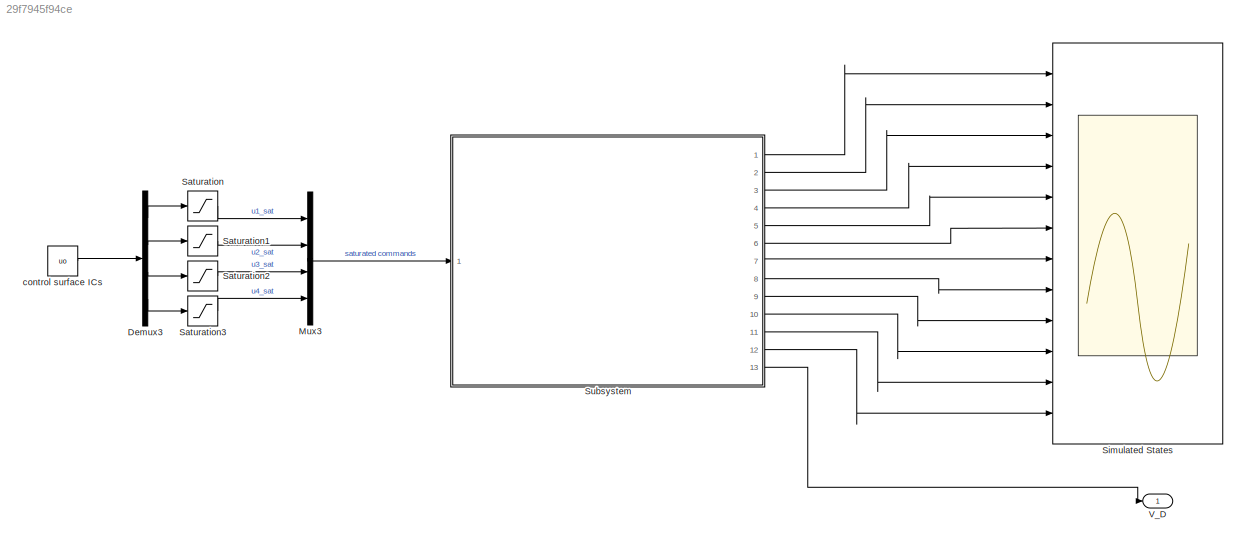
MODEL slx_29f7945f94ce
KIND model
CONFIG AbsTol = auto
CONFIG EnableMultiTasking = off
CONFIG FixedStep = auto
CONFIG MaxStep = auto
CONFIG MinStep = auto
CONFIG RelTol = 1e-3
CONFIG SampleTimeConstraint = Unconstrained
CONFIG SolverName = VariableStepAuto
CONFIG StartTime = 0.0
CONFIG StopTime = 10.0
BLOCK [Demux] Demux3
  Ports = [1, 4]
BLOCK [Mux] Mux3
  DisplayOption = bar
  Ports = [4, 1]
BLOCK [Saturate] Saturation
  LowerLimit = u1min
  UpperLimit = u1max
BLOCK [Saturate] Saturation1
  LowerLimit = u2min
  UpperLimit = u2max
BLOCK [Saturate] Saturation2
  LowerLimit = u3min
  UpperLimit = u3max
BLOCK [Saturate] Saturation3
  LowerLimit = u4min
  UpperLimit = u4max
BLOCK [Scope] Simulated States
  Floating = off
  NumInputPorts = 12
  Ports = [12]
  ScopeSpecificationString = Simulink.scopes.TimeScopeBlockCfg('CurrentConfiguration', extmgr.ConfigurationSet(extmgr.Configuration('Core','General UI',true),extmgr.Configuration('Core','Source UI',true),extmgr.Configuration('Sources','WiredSimulink',true,'DataLoggingVariableName','ScopeData3'),extmgr.Configuration('Visuals','Time Domain',true,'SerializedDisplays',{struct('MinYLimReal','75.57503','MaxYLimReal','93.28709','YLa...<+9268ch>
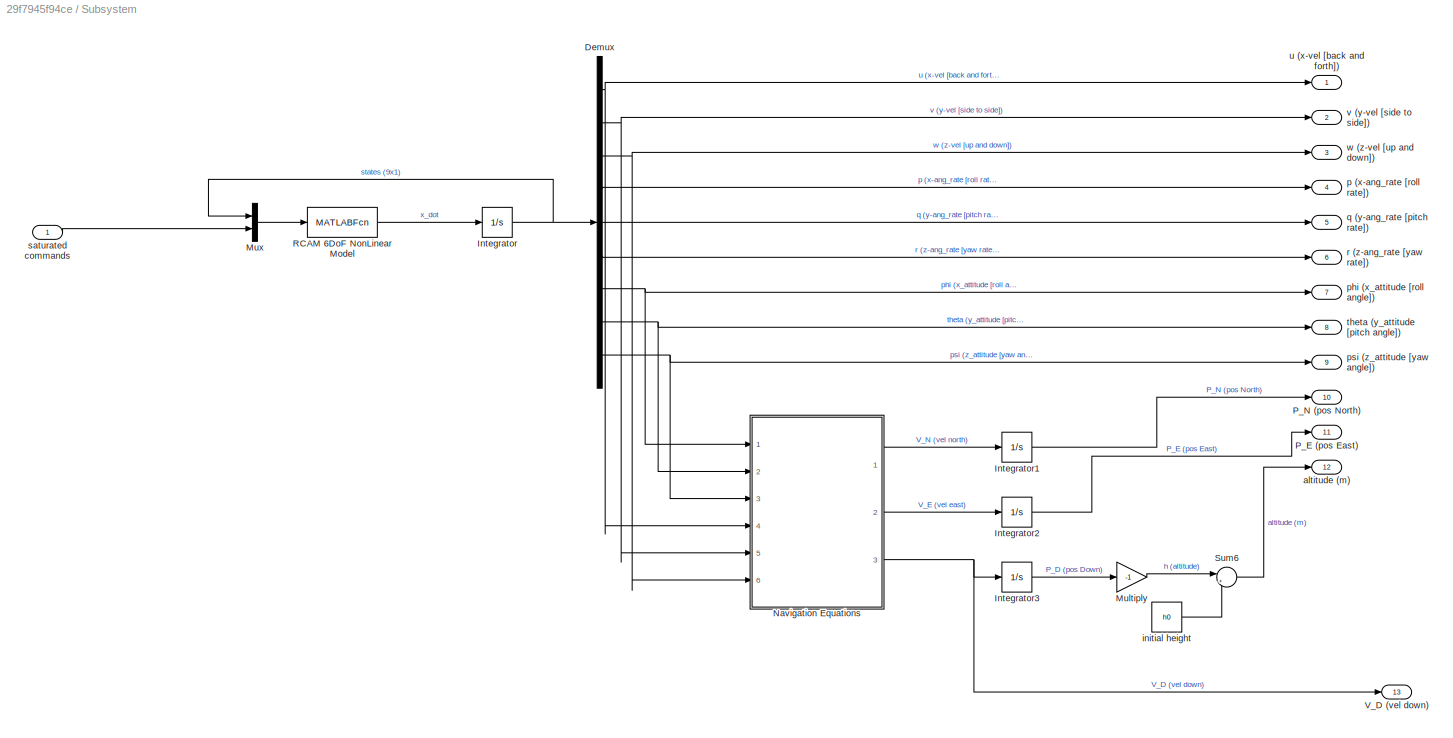
BLOCK [SubSystem] Subsystem
  Ports = [1, 13]
  RequestExecContextInheritance = off
BLOCK [Demux] Subsystem/Demux
  Outputs = 9
  Ports = [1, 9]
BLOCK [Integrator] Subsystem/Integrator
  InitialCondition = x0
  Ports = [1, 1]
BLOCK [Integrator] Subsystem/Integrator1
  Ports = [1, 1]
BLOCK [Integrator] Subsystem/Integrator2
  Ports = [1, 1]
BLOCK [Integrator] Subsystem/Integrator3
  Ports = [1, 1]
BLOCK [Gain] Subsystem/Multiply
  Gain = -1
BLOCK [Mux] Subsystem/Mux
  DisplayOption = bar
  Inputs = 2
  Ports = [2, 1]
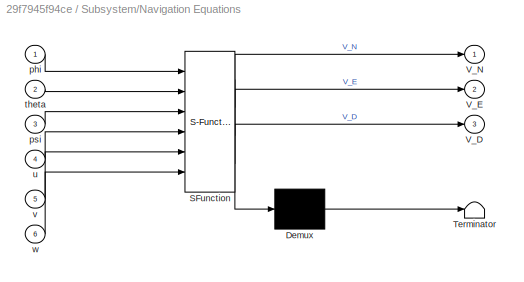
BLOCK [SubSystem] Subsystem/Navigation Equations
  ErrorFcn = Stateflow.Translate.translate
  PermitHierarchicalResolution = ExplicitOnly
  Ports = [6, 3]
  RequestExecContextInheritance = off
  SFBlockType = MATLAB Function
  TreatAsAtomicUnit = on
BLOCK [Demux] Subsystem/Navigation Equations/ Demux 
  Outputs = 1
  Ports = [1, 1]
BLOCK [S-Function] Subsystem/Navigation Equations/ SFunction 
  EnableBusSupport = on
  FunctionName = sf_sfun
  PortCounts = [6 4]
  Ports = [6, 4]
  SFcnIsStateOwnerBlock = off
  SFunctionDeploymentMode = off
  Tag = Stateflow S-Function 2
BLOCK [Terminator] Subsystem/Navigation Equations/ Terminator 
BLOCK [Outport] Subsystem/Navigation Equations/V_D
  Port = 3
BLOCK [Outport] Subsystem/Navigation Equations/V_E
  Port = 2
BLOCK [Outport] Subsystem/Navigation Equations/V_N
BLOCK [Inport] Subsystem/Navigation Equations/phi
BLOCK [Inport] Subsystem/Navigation Equations/psi
  Port = 3
BLOCK [Inport] Subsystem/Navigation Equations/theta
  Port = 2
BLOCK [Inport] Subsystem/Navigation Equations/u
  Port = 4
BLOCK [Inport] Subsystem/Navigation Equations/v
  Port = 5
BLOCK [Inport] Subsystem/Navigation Equations/w
  Port = 6
BLOCK [Outport] Subsystem/P_E (pos East)
  Port = 11
BLOCK [Outport] Subsystem/P_N (pos North)
  Port = 10
BLOCK [MATLABFcn] Subsystem/RCAM 6DoF NonLinear Model
  MATLABFcn = RCAM_model(u(1:9), u(10:13))
  Ports = [1, 1]
BLOCK [Sum] Subsystem/Sum6
  Inputs = |++
  Ports = [2, 1]
BLOCK [Outport] Subsystem/V_D (vel down)
  Port = 13
BLOCK [Outport] Subsystem/altitude (m)
  Port = 12
BLOCK [Constant] Subsystem/initial height
  Value = h0
BLOCK [Outport] Subsystem/p (x-ang_rate [roll rate])
  Port = 4
BLOCK [Outport] Subsystem/phi (x_attitude [roll angle])
  Port = 7
BLOCK [Outport] Subsystem/psi (z_attitude [yaw angle])
  Port = 9
BLOCK [Outport] Subsystem/q (y-ang_rate [pitch rate])
  Port = 5
BLOCK [Outport] Subsystem/r (z-ang_rate [yaw rate])
  Port = 6
BLOCK [Inport] Subsystem/saturated commands
BLOCK [Outport] Subsystem/theta (y_attitude [pitch angle])
  Port = 8
BLOCK [Outport] Subsystem/u (x-vel [back and forth])
BLOCK [Outport] Subsystem/v (y-vel [side to side])
  Port = 2
BLOCK [Outport] Subsystem/w (z-vel [up and down])
  Port = 3
BLOCK [Outport] V_D
BLOCK [Constant] control surface ICs
  Value = uo
LINE Demux3:1 -> Saturation:1
LINE Demux3:2 -> Saturation1:1
LINE Demux3:3 -> Saturation2:1
LINE Demux3:4 -> Saturation3:1
LINE Mux3:1 -> Subsystem:1
LINE Saturation1:1 -> Mux3:2
LINE Saturation2:1 -> Mux3:3
LINE Saturation3:1 -> Mux3:4
LINE Saturation:1 -> Mux3:1
NET Subsystem/Demux:1 -> Subsystem/Navigation Equations:4, Subsystem/u (x-vel [back and forth]):1
NET Subsystem/Demux:2 -> Subsystem/Navigation Equations:5, Subsystem/v (y-vel [side to side]):1
NET Subsystem/Demux:3 -> Subsystem/Navigation Equations:6, Subsystem/w (z-vel [up and down]):1
LINE Subsystem/Demux:4 -> Subsystem/p (x-ang_rate [roll rate]):1
LINE Subsystem/Demux:5 -> Subsystem/q (y-ang_rate [pitch rate]):1
LINE Subsystem/Demux:6 -> Subsystem/r (z-ang_rate [yaw rate]):1
NET Subsystem/Demux:7 -> Subsystem/Navigation Equations:1, Subsystem/phi (x_attitude [roll angle]):1
NET Subsystem/Demux:8 -> Subsystem/Navigation Equations:2, Subsystem/theta (y_attitude [pitch angle]):1
NET Subsystem/Demux:9 -> Subsystem/Navigation Equations:3, Subsystem/psi (z_attitude [yaw angle]):1
LINE Subsystem/Integrator1:1 -> Subsystem/P_N (pos North):1
LINE Subsystem/Integrator2:1 -> Subsystem/P_E (pos East):1
LINE Subsystem/Integrator3:1 -> Subsystem/Multiply:1
NET Subsystem/Integrator:1 -> Subsystem/Demux:1, Subsystem/Mux:1
LINE Subsystem/Multiply:1 -> Subsystem/Sum6:1
LINE Subsystem/Mux:1 -> Subsystem/RCAM 6DoF NonLinear Model:1
LINE Subsystem/Navigation Equations:1 -> Subsystem/Integrator1:1
LINE Subsystem/Navigation Equations:2 -> Subsystem/Integrator2:1
NET Subsystem/Navigation Equations:3 -> Subsystem/Integrator3:1, Subsystem/V_D (vel down):1
LINE Subsystem/RCAM 6DoF NonLinear Model:1 -> Subsystem/Integrator:1
LINE Subsystem/Sum6:1 -> Subsystem/altitude (m):1
LINE Subsystem/initial height:1 -> Subsystem/Sum6:2
LINE Subsystem/saturated commands:1 -> Subsystem/Mux:2
LINE Subsystem:1 -> Simulated States:1
LINE Subsystem:10 -> Simulated States:10
LINE Subsystem:11 -> Simulated States:11
LINE Subsystem:12 -> Simulated States:12
LINE Subsystem:13 -> V_D:1
LINE Subsystem:2 -> Simulated States:2
LINE Subsystem:3 -> Simulated States:3
LINE Subsystem:4 -> Simulated States:4
LINE Subsystem:5 -> Simulated States:5
LINE Subsystem:6 -> Simulated States:6
LINE Subsystem:7 -> Simulated States:7
LINE Subsystem:8 -> Simulated States:8
LINE Subsystem:9 -> Simulated States:9
LINE control surface ICs:1 -> Demux3:1
note: NET lines group one-source signal fan-out (src -> all destinations, sorted); 1:1 wires keep LINE
CHART Subsystem/Navigation Equations states=1 transitions=1
  STATE_LABEL 'eML_blk_kernel()'
  STATE_LABEL "SCRIPT:\nfunction [V_N, V_E, V_D] = navigation_equation(phi, theta, psi, u, v, w)\n\nx7 = phi;\nx8 = theta;\nx9 = psi;\nx1 = u;\nx2 = v;\nx3 = w;\n\nV_b = [x1; x2; x3];\n\n%navigation equations\nC1v = [cos(x9) sin(x9) 0; -sin(x9) cos(x9) 0; 0 0 1];\n\nC21 = [cos(x8) 0 -sin(x8); 0 1 0; sin(x8) 0 cos(x8)];\n\nCb2 = [1 0 0; 0 cos(x7) sin(x7); 0 -sin(x7) cos(x7)];\n\nCvb = Cb2*C21*C1v;\nCvb = Cvb';\n\nvel_vector = Cvb*V_b;...<+69ch>"
CHART  states=0 transitions=0
